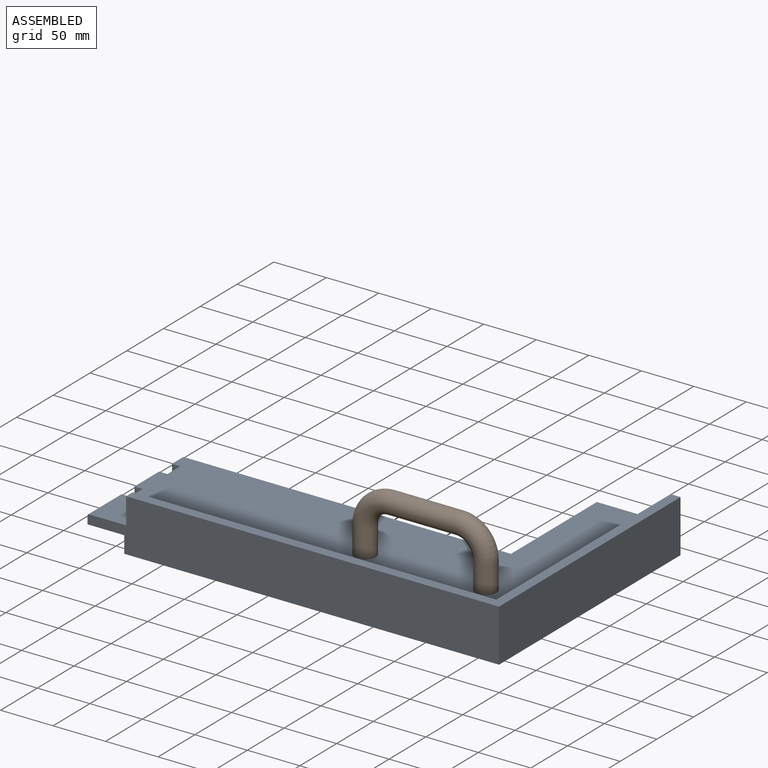
[diagram: assembled view]
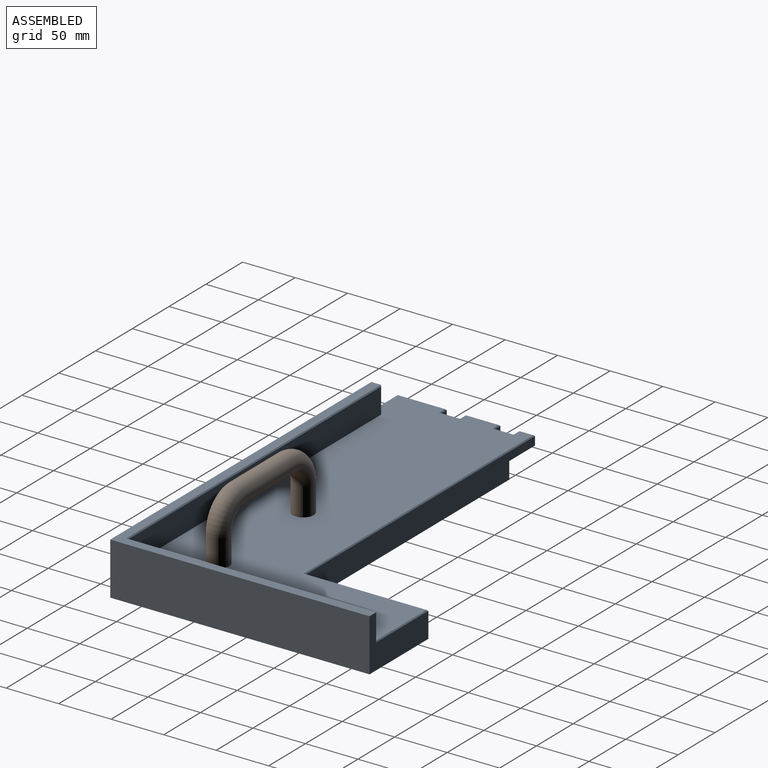
[diagram: assembled view, second angle]
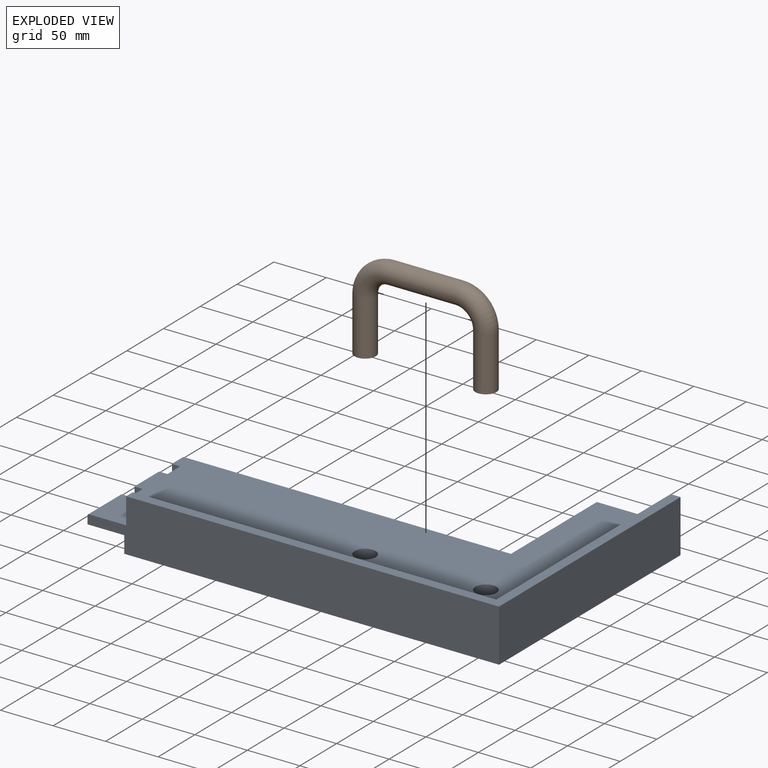
[diagram: exploded view]
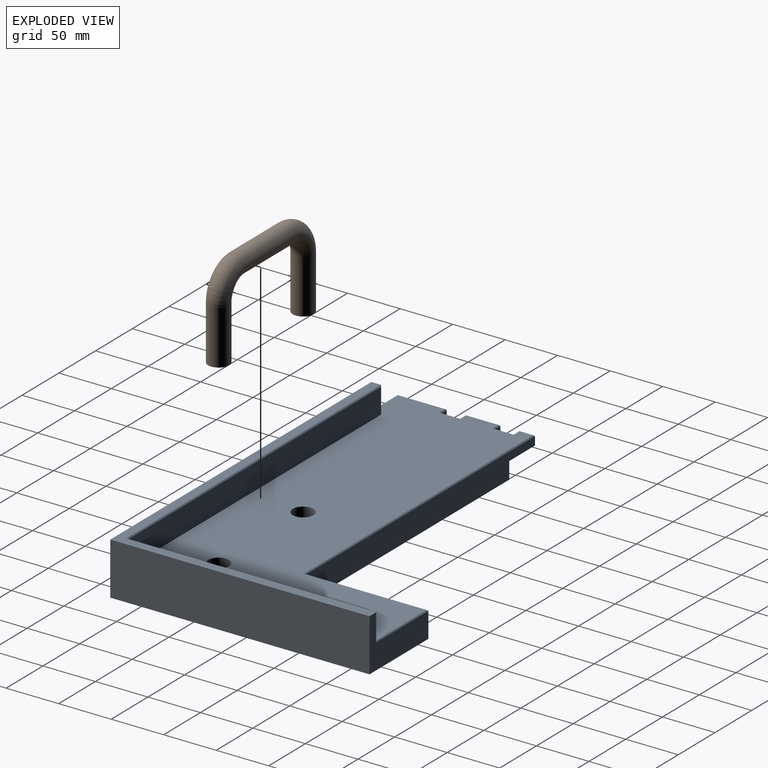
[diagram: exploded view, second angle]
ASSEMBLY  parts=2 mates=2
PART A: 40 faces, bbox 392x246.9x50 mm
  f0: plane 381x245.88mm, normal (0,0,1), area 52814.4mm2, adj f12,f18,f19,f20,f22,f23,f24,f25
  f1: plane 312x24mm, normal (0,1,0), area 6928mm2, adj f2,f11,f15,f16,f17,f31
  f2: plane 357x246.88mm, normal (0,0,-1), area 55131.9mm2, adj f1,f12,f13,f14,f15,f16,f38,f39
  f3: plane 18x8mm, normal (-1,0,0), area 144mm2, adj f4,f5,f17,f24
  f4: plane 8x8mm, normal (0,-1,0), area 64mm2, adj f3,f9,f17,f26
  f5: plane 8x8mm, normal (0,1,0), area 64mm2, adj f3,f10,f17,f23
  f6: plane 18x8mm, normal (-1,0,0), area 144mm2, adj f7,f8,f17,f29
  f7: plane 8x8mm, normal (0,-1,0), area 64mm2, adj f6,f11,f17,f27
  f8: plane 8x8mm, normal (0,1,0), area 64mm2, adj f6,f9,f17,f30
  f9: plane 33x8mm, normal (-1,0,0), area 264mm2, adj f4,f8,f17,f28
  f10: plane 46x8mm, normal (-1,0,0), area 368mm2, adj f5,f12,f17,f22
  f11: plane 15x8mm, normal (-1,0,0), area 120mm2, adj f1,f7,f17,f25
  f12: plane 392x50mm, normal (0,-1,0), area 18118mm2, adj f0,f2,f10,f13,f16,f17,f20,f21
  f13: plane 246.88x50mm, normal (1,0,0), area 12343.9mm2, adj f2,f12,f14,f21
  f14: plane 80x50mm, normal (0,1,0), area 2154mm2, adj f2,f13,f15,f21,f36,f37
  f15: plane 116.88x24mm, normal (-1,0,0), area 2805.1mm2, adj f1,f2,f14,f32
  f16: plane 130x16mm, normal (-1,0,0), area 2080mm2, adj f1,f2,f12,f17
  f17: plane 130x35mm, normal (0,0,-1), area 4262mm2, adj f1,f3,f4,f5,f6,f7,f8,f9
  f18: plane 235.88x24mm, normal (-1,0,0), area 5661.1mm2, adj f0,f19,f34,f37
  f19: plane 344.14x24mm, normal (0,1,0), area 8259.3mm2, adj f0,f18,f33,f35
  f20: plane 25x9mm, normal (-1,0,0), area 225mm2, adj f0,f12,f21,f35
  f21: plane 355.14x246.88mm, normal (0,0,1), area 5337.1mm2, adj f12,f13,f14,f20,f33,f34
  f22: plane 46x1mm, normal (-0.71,0,0.71), area 64.3mm2, adj f0,f10,f12,f23
  f23: plane 9x1mm, normal (0,0.71,0.71), area 11.3mm2, adj f0,f5,f22,f24
  f24: plane 20x1mm, normal (-0.71,0,0.71), area 26.9mm2, adj f0,f3,f23,f26
  f25: plane 15x1mm, normal (-0.71,0,0.71), area 19.8mm2, adj f0,f11,f27,f31
  f26: plane 9x1mm, normal (0,-0.71,0.71), area 11.3mm2, adj f0,f4,f24,f28
  f27: plane 9x1mm, normal (0,-0.71,0.71), area 11.3mm2, adj f0,f7,f25,f29
  f28: plane 33x1mm, normal (-0.71,0,0.71), area 45.3mm2, adj f0,f9,f26,f30
  f29: plane 20x1mm, normal (-0.71,0,0.71), area 26.9mm2, adj f0,f6,f27,f30
  f30: plane 9x1mm, normal (0,0.71,0.71), area 11.3mm2, adj f0,f8,f28,f29
  f31: plane 313x1mm, normal (0,0.71,0.71), area 441.2mm2, adj f0,f1,f25,f32
  f32: plane 117.88x1mm, normal (-0.71,0,0.71), area 165.3mm2, adj f0,f15,f31,f36
  f33: plane 346.14x1mm, normal (0,0.71,0.71), area 488.1mm2, adj f19,f21,f34,f35
  f34: plane 237.88x1mm, normal (-0.71,0,0.71), area 335mm2, adj f18,f21,f33,f37
  f35: plane 25x1mm, normal (-0.71,0.71,0), area 34.6mm2, adj f0,f19,f20,f33
  f36: plane 71x1mm, normal (0,0.71,0.71), area 99mm2, adj f0,f14,f32,f37
  f37: plane 26x1mm, normal (-0.71,0.71,0), area 35.4mm2, adj f14,f18,f34,f36
  f38: cylinder r=10mm len=25mm, axis (0,0,1), area 1570.8mm2, adj f0,f2
  f39: cylinder r=10mm len=25mm, axis (0,0,1), area 1570.8mm2, adj f0,f2
PART B: 7 faces, bbox 140.8x89.1x20 mm
  f0: plane 20x20mm, normal (0,-1,0), area 314.2mm2, adj f2
  f1: plane 20x20mm, normal (0,-1,0), area 314.2mm2, adj f6
  f2: cylinder r=10mm len=51.2mm, axis (0,1,0), area 3217mm2, adj f0,f3
  f3: torus R=25mm, axis (0,0,-1), area 2467.4mm2, adj f2,f4
  f4: cylinder r=10mm len=65mm, axis (1,0,0), area 4084.1mm2, adj f3,f5
  f5: torus R=25mm, axis (0,0,-1), area 2467.4mm2, adj f4,f6
  f6: cylinder r=10mm len=51.2mm, axis (0,-1,0), area 3217mm2, adj f1,f5
PLACE A t=(79.04,-120.51,10.55)mm
PLACE B rot(axis=(1,0,0),90deg) t=(-92.86,-57.14,10.55)mm
MATE slider B.f6 <-> A.f39  axis (0,0,1) through (22.14,-57.14,61.75)mm
MATE fastened B.f2 <-> A.f38  axis (0,0,-1) through (-92.86,-57.14,10.55)mm
